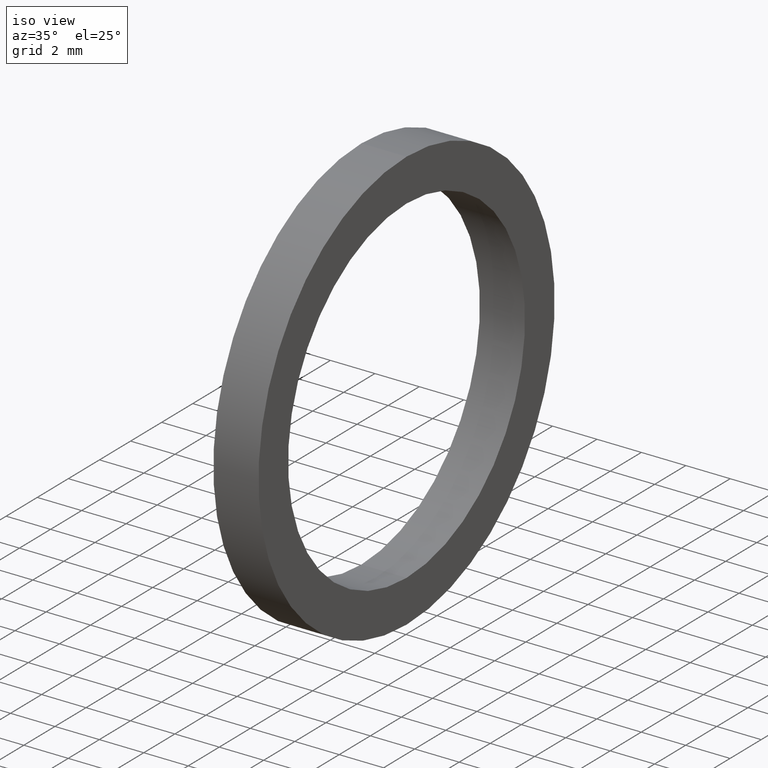
[diagram: clean part render]
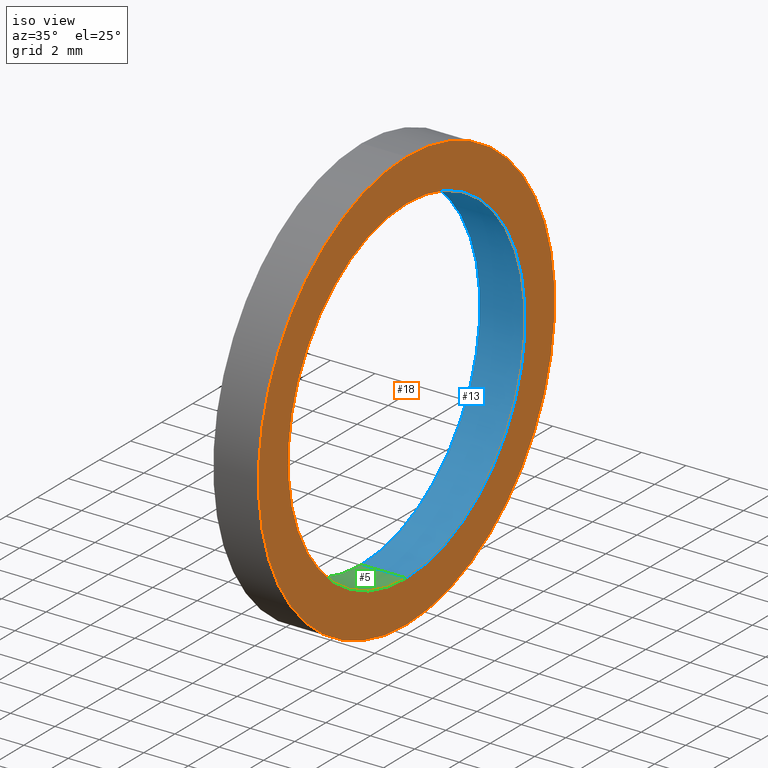
[diagram: same view with three faces highlighted in distinct colors, each labeled with its STEP entity id]
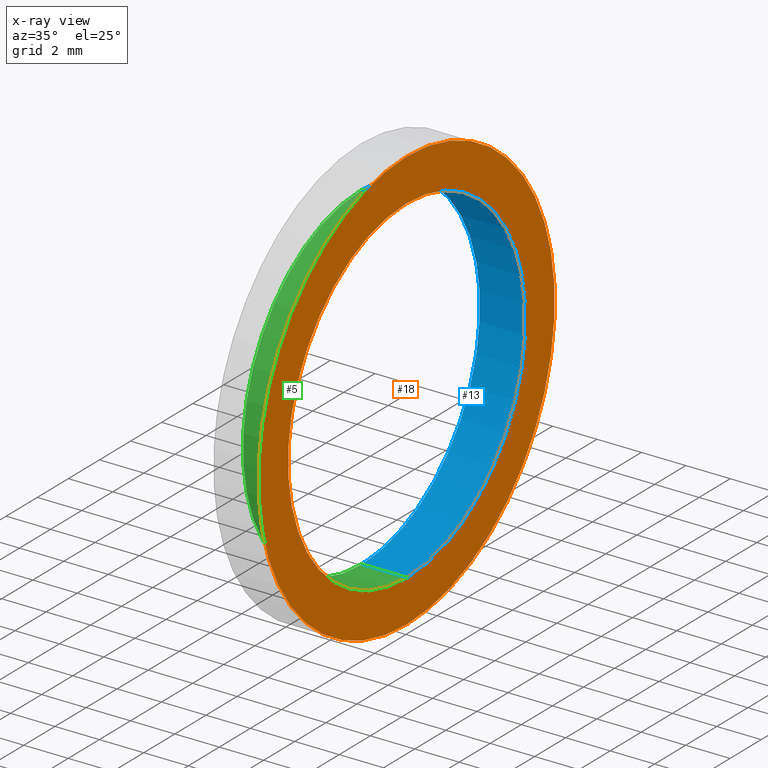
[diagram: x-ray of the same camera — body ghosted, the three highlighted faces saturated]
A machine part, iso view with three faces highlighted in distinct colors.
The next image is the same camera in x-ray (body ghosted, the three faces saturated) — at least one of them is partly hidden behind the body in this view.
Their STEP definitions:

[orange] entity #18 — the highlighted planar face has unit normal (1, 0, 0).
#2 = DIRECTION ( 'NONE',  ( 0.0000000000000000000, 0.0000000000000000000, -1.000000000000000000 ) ) ;
#8 = EDGE_CURVE ( 'NONE', #44, #43, #75, .T. ) ;
#11 = ORIENTED_EDGE ( 'NONE', *, *, #8, .T. ) ;
#12 = ORIENTED_EDGE ( 'NONE', *, *, #52, .F. ) ;
#18 = ADVANCED_FACE ( 'NONE', ( #83, #82 ), #87, .T. ) ;
#19 = EDGE_LOOP ( 'NONE', ( #20, #11 ) ) ;
#20 = ORIENTED_EDGE ( 'NONE', *, *, #23, .T. ) ;
#21 = ORIENTED_EDGE ( 'NONE', *, *, #37, .F. ) ;
#22 = EDGE_LOOP ( 'NONE', ( #21, #12 ) ) ;
#23 = EDGE_CURVE ( 'NONE', #43, #44, #113, .T. ) ;
#37 = EDGE_CURVE ( 'NONE', #58, #59, #95, .T. ) ;
#43 = VERTEX_POINT ( 'NONE', #123 ) ;
#44 = VERTEX_POINT ( 'NONE', #122 ) ;
#52 = EDGE_CURVE ( 'NONE', #59, #58, #136, .T. ) ;
#58 = VERTEX_POINT ( 'NONE', #138 ) ;
#59 = VERTEX_POINT ( 'NONE', #160 ) ;
#71 = DIRECTION ( 'NONE',  ( 0.0000000000000000000, 0.0000000000000000000, 1.000000000000000000 ) ) ;
#72 = DIRECTION ( 'NONE',  ( -1.000000000000000000, 0.0000000000000000000, 0.0000000000000000000 ) ) ;
#73 = CARTESIAN_POINT ( 'NONE',  ( 0.07999999999999996000, 0.0000000000000000000, 0.0000000000000000000 ) ) ;
#74 = AXIS2_PLACEMENT_3D ( 'NONE', #73, #72, #71 ) ;
#75 = CIRCLE ( 'NONE', #74, 0.2999999999999999900 ) ;
#82 = FACE_OUTER_BOUND ( 'NONE', #22, .T. ) ;
#83 = FACE_BOUND ( 'NONE', #19, .T. ) ;
#84 = DIRECTION ( 'NONE',  ( 1.000000000000000000, 0.0000000000000000000, 0.0000000000000000000 ) ) ;
#85 = CARTESIAN_POINT ( 'NONE',  ( 0.08000000000000000200, -0.2999999999999999900, 0.0000000000000000000 ) ) ;
#86 = AXIS2_PLACEMENT_3D ( 'NONE', #85, #84, #2 ) ;
#87 = PLANE ( 'NONE',  #86 ) ;
#88 = CARTESIAN_POINT ( 'NONE',  ( 0.07999999999999996000, 0.0000000000000000000, 0.0000000000000000000 ) ) ;
#94 = AXIS2_PLACEMENT_3D ( 'NONE', #104, #103, #102 ) ;
#95 = CIRCLE ( 'NONE', #94, 0.3750000000000000600 ) ;
#102 = DIRECTION ( 'NONE',  ( 0.0000000000000000000, 0.0000000000000000000, 1.000000000000000000 ) ) ;
#103 = DIRECTION ( 'NONE',  ( -1.000000000000000000, 0.0000000000000000000, 0.0000000000000000000 ) ) ;
#104 = CARTESIAN_POINT ( 'NONE',  ( 0.07999999999999996000, 0.0000000000000000000, 0.0000000000000000000 ) ) ;
#105 = DIRECTION ( 'NONE',  ( -1.000000000000000000, 0.0000000000000000000, 0.0000000000000000000 ) ) ;
#106 = DIRECTION ( 'NONE',  ( 0.0000000000000000000, 0.0000000000000000000, 1.000000000000000000 ) ) ;
#113 = CIRCLE ( 'NONE', #117, 0.2999999999999999900 ) ;
#117 = AXIS2_PLACEMENT_3D ( 'NONE', #88, #105, #106 ) ;
#122 = CARTESIAN_POINT ( 'NONE',  ( 0.07999999999999996000, 3.673940397442058900E-017, -0.2999999999999999900 ) ) ;
#123 = CARTESIAN_POINT ( 'NONE',  ( 0.07999999999999996000, 0.0000000000000000000, 0.2999999999999999900 ) ) ;
#134 = CARTESIAN_POINT ( 'NONE',  ( 0.07999999999999996000, 0.0000000000000000000, 0.0000000000000000000 ) ) ;
#135 = AXIS2_PLACEMENT_3D ( 'NONE', #134, #151, #150 ) ;
#136 = CIRCLE ( 'NONE', #135, 0.3750000000000000600 ) ;
#138 = CARTESIAN_POINT ( 'NONE',  ( 0.07999999999999996000, 0.0000000000000000000, 0.3750000000000000600 ) ) ;
#150 = DIRECTION ( 'NONE',  ( 0.0000000000000000000, 0.0000000000000000000, 1.000000000000000000 ) ) ;
#151 = DIRECTION ( 'NONE',  ( -1.000000000000000000, 0.0000000000000000000, 0.0000000000000000000 ) ) ;
#160 = CARTESIAN_POINT ( 'NONE',  ( 0.07999999999999996000, 4.592425496802575500E-017, -0.3750000000000000600 ) ) ;

[blue] entity #13 — the highlighted cylindrical surface (partial cylindrical patch) has radius 7.62 mm, axis along (-1, 0, 0).
#9 = ORIENTED_EDGE ( 'NONE', *, *, #55, .T. ) ;
#13 = ADVANCED_FACE ( 'NONE', ( #77 ), #80, .F. ) ;
#14 = EDGE_LOOP ( 'NONE', ( #15, #16, #17, #9 ) ) ;
#15 = ORIENTED_EDGE ( 'NONE', *, *, #46, .F. ) ;
#16 = ORIENTED_EDGE ( 'NONE', *, *, #23, .F. ) ;
#17 = ORIENTED_EDGE ( 'NONE', *, *, #41, .T. ) ;
#23 = EDGE_CURVE ( 'NONE', #43, #44, #113, .T. ) ;
#41 = EDGE_CURVE ( 'NONE', #43, #42, #128, .T. ) ;
#42 = VERTEX_POINT ( 'NONE', #129 ) ;
#43 = VERTEX_POINT ( 'NONE', #123 ) ;
#44 = VERTEX_POINT ( 'NONE', #122 ) ;
#46 = EDGE_CURVE ( 'NONE', #44, #48, #121, .T. ) ;
#48 = VERTEX_POINT ( 'NONE', #158 ) ;
#55 = EDGE_CURVE ( 'NONE', #42, #48, #137, .T. ) ;
#76 = DIRECTION ( 'NONE',  ( 0.0000000000000000000, 0.0000000000000000000, 1.000000000000000000 ) ) ;
#77 = FACE_OUTER_BOUND ( 'NONE', #14, .T. ) ;
#78 = DIRECTION ( 'NONE',  ( -1.000000000000000000, 0.0000000000000000000, 0.0000000000000000000 ) ) ;
#79 = AXIS2_PLACEMENT_3D ( 'NONE', #81, #78, #76 ) ;
#80 = CYLINDRICAL_SURFACE ( 'NONE', #79, 0.2999999999999999900 ) ;
#81 = CARTESIAN_POINT ( 'NONE',  ( -1.721125226614714300, 0.0000000000000000000, 0.0000000000000000000 ) ) ;
#88 = CARTESIAN_POINT ( 'NONE',  ( 0.07999999999999996000, 0.0000000000000000000, 0.0000000000000000000 ) ) ;
#105 = DIRECTION ( 'NONE',  ( -1.000000000000000000, 0.0000000000000000000, 0.0000000000000000000 ) ) ;
#106 = DIRECTION ( 'NONE',  ( 0.0000000000000000000, 0.0000000000000000000, 1.000000000000000000 ) ) ;
#113 = CIRCLE ( 'NONE', #117, 0.2999999999999999900 ) ;
#116 = VECTOR ( 'NONE', #119, 39.37007874015748100 ) ;
#117 = AXIS2_PLACEMENT_3D ( 'NONE', #88, #105, #106 ) ;
#119 = DIRECTION ( 'NONE',  ( -1.000000000000000000, 0.0000000000000000000, 0.0000000000000000000 ) ) ;
#120 = CARTESIAN_POINT ( 'NONE',  ( -1.721125226614714300, 3.673940397442058900E-017, -0.2999999999999999900 ) ) ;
#121 = LINE ( 'NONE', #120, #116 ) ;
#122 = CARTESIAN_POINT ( 'NONE',  ( 0.07999999999999996000, 3.673940397442058900E-017, -0.2999999999999999900 ) ) ;
#123 = CARTESIAN_POINT ( 'NONE',  ( 0.07999999999999996000, 0.0000000000000000000, 0.2999999999999999900 ) ) ;
#124 = DIRECTION ( 'NONE',  ( -1.000000000000000000, 0.0000000000000000000, 0.0000000000000000000 ) ) ;
#125 = VECTOR ( 'NONE', #124, 39.37007874015748100 ) ;
#127 = CARTESIAN_POINT ( 'NONE',  ( -1.721125226614714300, 0.0000000000000000000, 0.2999999999999999900 ) ) ;
#128 = LINE ( 'NONE', #127, #125 ) ;
#129 = CARTESIAN_POINT ( 'NONE',  ( 0.0000000000000000000, 0.0000000000000000000, 0.2999999999999999900 ) ) ;
#137 = CIRCLE ( 'NONE', #164, 0.2999999999999999900 ) ;
#158 = CARTESIAN_POINT ( 'NONE',  ( 0.0000000000000000000, 3.673940397442058900E-017, -0.2999999999999999900 ) ) ;
#161 = DIRECTION ( 'NONE',  ( 0.0000000000000000000, 0.0000000000000000000, 1.000000000000000000 ) ) ;
#162 = DIRECTION ( 'NONE',  ( -1.000000000000000000, 0.0000000000000000000, 0.0000000000000000000 ) ) ;
#163 = CARTESIAN_POINT ( 'NONE',  ( 0.0000000000000000000, 0.0000000000000000000, 0.0000000000000000000 ) ) ;
#164 = AXIS2_PLACEMENT_3D ( 'NONE', #163, #162, #161 ) ;

[green] entity #5 — the highlighted cylindrical surface (partial cylindrical patch) has radius 7.62 mm, axis along (-1, 0, 0).
#1 = DIRECTION ( 'NONE',  ( 0.0000000000000000000, 0.0000000000000000000, 1.000000000000000000 ) ) ;
#5 = ADVANCED_FACE ( 'NONE', ( #32 ), #30, .F. ) ;
#6 = EDGE_LOOP ( 'NONE', ( #7, #45, #49, #38 ) ) ;
#7 = ORIENTED_EDGE ( 'NONE', *, *, #8, .F. ) ;
#8 = EDGE_CURVE ( 'NONE', #44, #43, #75, .T. ) ;
#28 = DIRECTION ( 'NONE',  ( -1.000000000000000000, 0.0000000000000000000, 0.0000000000000000000 ) ) ;
#29 = AXIS2_PLACEMENT_3D ( 'NONE', #31, #28, #1 ) ;
#30 = CYLINDRICAL_SURFACE ( 'NONE', #29, 0.2999999999999999900 ) ;
#31 = CARTESIAN_POINT ( 'NONE',  ( -1.721125226614714300, 0.0000000000000000000, 0.0000000000000000000 ) ) ;
#32 = FACE_OUTER_BOUND ( 'NONE', #6, .T. ) ;
#38 = ORIENTED_EDGE ( 'NONE', *, *, #41, .F. ) ;
#41 = EDGE_CURVE ( 'NONE', #43, #42, #128, .T. ) ;
#42 = VERTEX_POINT ( 'NONE', #129 ) ;
#43 = VERTEX_POINT ( 'NONE', #123 ) ;
#44 = VERTEX_POINT ( 'NONE', #122 ) ;
#45 = ORIENTED_EDGE ( 'NONE', *, *, #46, .T. ) ;
#46 = EDGE_CURVE ( 'NONE', #44, #48, #121, .T. ) ;
#47 = EDGE_CURVE ( 'NONE', #48, #42, #111, .T. ) ;
#48 = VERTEX_POINT ( 'NONE', #158 ) ;
#49 = ORIENTED_EDGE ( 'NONE', *, *, #47, .T. ) ;
#71 = DIRECTION ( 'NONE',  ( 0.0000000000000000000, 0.0000000000000000000, 1.000000000000000000 ) ) ;
#72 = DIRECTION ( 'NONE',  ( -1.000000000000000000, 0.0000000000000000000, 0.0000000000000000000 ) ) ;
#73 = CARTESIAN_POINT ( 'NONE',  ( 0.07999999999999996000, 0.0000000000000000000, 0.0000000000000000000 ) ) ;
#74 = AXIS2_PLACEMENT_3D ( 'NONE', #73, #72, #71 ) ;
#75 = CIRCLE ( 'NONE', #74, 0.2999999999999999900 ) ;
#108 = DIRECTION ( 'NONE',  ( 0.0000000000000000000, 0.0000000000000000000, 1.000000000000000000 ) ) ;
#109 = DIRECTION ( 'NONE',  ( -1.000000000000000000, 0.0000000000000000000, 0.0000000000000000000 ) ) ;
#110 = AXIS2_PLACEMENT_3D ( 'NONE', #115, #109, #108 ) ;
#111 = CIRCLE ( 'NONE', #110, 0.2999999999999999900 ) ;
#115 = CARTESIAN_POINT ( 'NONE',  ( 0.0000000000000000000, 0.0000000000000000000, 0.0000000000000000000 ) ) ;
#116 = VECTOR ( 'NONE', #119, 39.37007874015748100 ) ;
#119 = DIRECTION ( 'NONE',  ( -1.000000000000000000, 0.0000000000000000000, 0.0000000000000000000 ) ) ;
#120 = CARTESIAN_POINT ( 'NONE',  ( -1.721125226614714300, 3.673940397442058900E-017, -0.2999999999999999900 ) ) ;
#121 = LINE ( 'NONE', #120, #116 ) ;
#122 = CARTESIAN_POINT ( 'NONE',  ( 0.07999999999999996000, 3.673940397442058900E-017, -0.2999999999999999900 ) ) ;
#123 = CARTESIAN_POINT ( 'NONE',  ( 0.07999999999999996000, 0.0000000000000000000, 0.2999999999999999900 ) ) ;
#124 = DIRECTION ( 'NONE',  ( -1.000000000000000000, 0.0000000000000000000, 0.0000000000000000000 ) ) ;
#125 = VECTOR ( 'NONE', #124, 39.37007874015748100 ) ;
#127 = CARTESIAN_POINT ( 'NONE',  ( -1.721125226614714300, 0.0000000000000000000, 0.2999999999999999900 ) ) ;
#128 = LINE ( 'NONE', #127, #125 ) ;
#129 = CARTESIAN_POINT ( 'NONE',  ( 0.0000000000000000000, 0.0000000000000000000, 0.2999999999999999900 ) ) ;
#158 = CARTESIAN_POINT ( 'NONE',  ( 0.0000000000000000000, 3.673940397442058900E-017, -0.2999999999999999900 ) ) ;